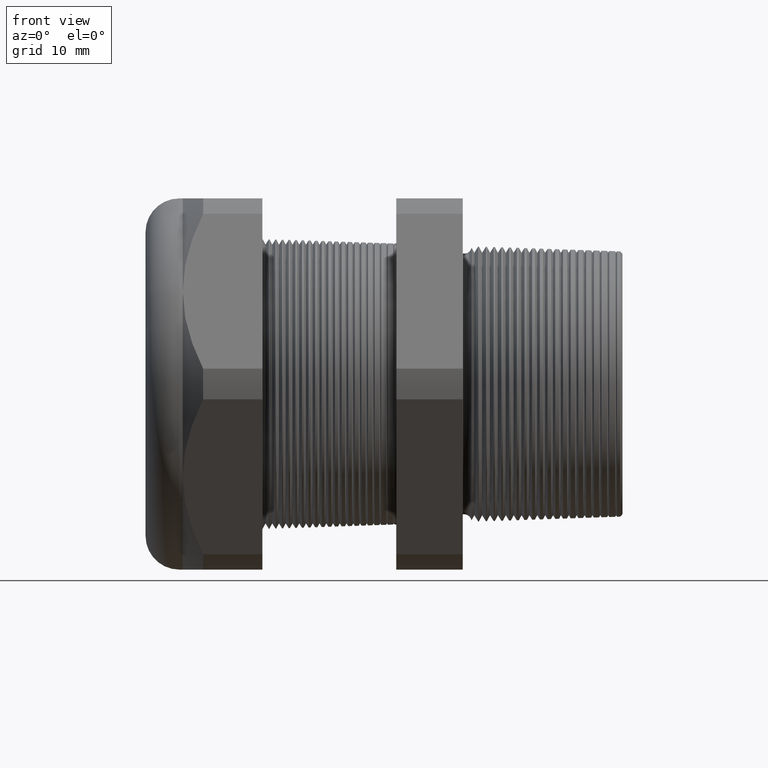
[diagram: clean part render]
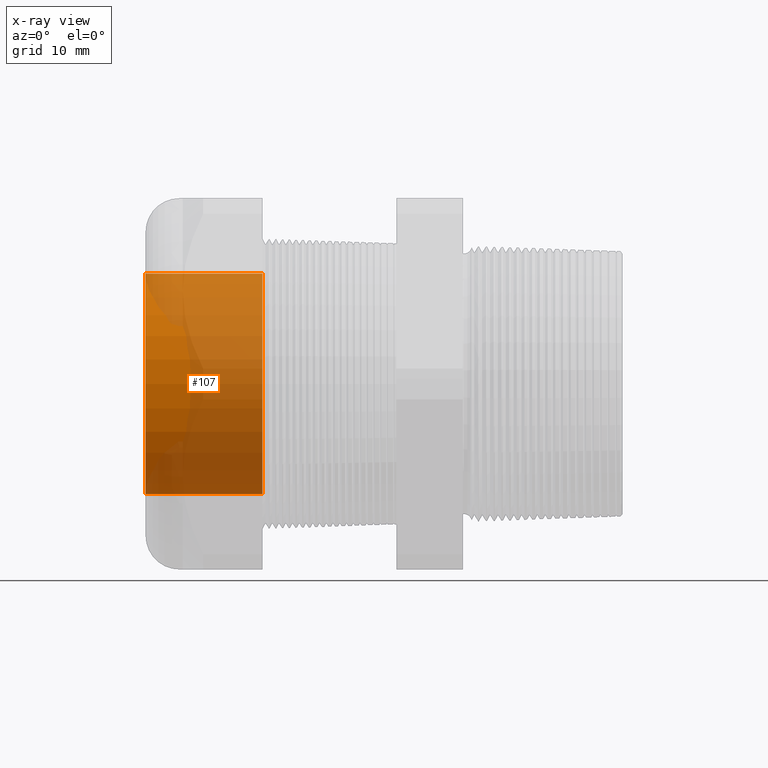
[diagram: x-ray — body ghosted, one internal face saturated and labeled with its STEP entity id]
A machine part, front view, then the same camera in x-ray: the body is ghosted and one INTERNAL B-rep face — a face not visible from any outside direction — is saturated and labeled: STEP entity #107.
In plain terms, the highlighted cylindrical surface (partial cylindrical patch) has radius 12.446 mm, axis along (1, 0, 0).
Its self-contained STEP definition (entity closure, byte-faithful):
#81 = VERTEX_POINT ( 'NONE', #2477 ) ;
#83 = VERTEX_POINT ( 'NONE', #2475 ) ;
#94 = ORIENTED_EDGE ( 'NONE', *, *, #629, .T. ) ;
#102 = EDGE_CURVE ( 'NONE', #83, #81, #2564, .T. ) ;
#103 = ORIENTED_EDGE ( 'NONE', *, *, #102, .F. ) ;
#104 = EDGE_LOOP ( 'NONE', ( #103, #94, #624, #627 ) ) ;
#106 = VERTEX_POINT ( 'NONE', #2544 ) ;
#107 = ADVANCED_FACE ( 'NONE', ( #2543 ), #2542, .F. ) ;
#607 = EDGE_CURVE ( 'NONE', #106, #617, #3536, .T. ) ;
#617 = VERTEX_POINT ( 'NONE', #3576 ) ;
#623 = EDGE_CURVE ( 'NONE', #81, #617, #3575, .T. ) ;
#624 = ORIENTED_EDGE ( 'NONE', *, *, #607, .T. ) ;
#627 = ORIENTED_EDGE ( 'NONE', *, *, #623, .F. ) ;
#629 = EDGE_CURVE ( 'NONE', #83, #106, #3618, .T. ) ;
#2475 = CARTESIAN_POINT ( 'NONE',  ( -1.720000000000000000, 6.000769315822029800E-017, 0.4899999999999999900 ) ) ;
#2477 = CARTESIAN_POINT ( 'NONE',  ( -1.720000000000000000, 0.0000000000000000000, -0.4899999999999999900 ) ) ;
#2537 = DIRECTION ( 'NONE',  ( 0.0000000000000000000, 0.0000000000000000000, -1.000000000000000000 ) ) ;
#2538 = DIRECTION ( 'NONE',  ( 1.000000000000000000, 0.0000000000000000000, 0.0000000000000000000 ) ) ;
#2539 = CARTESIAN_POINT ( 'NONE',  ( 0.0000000000000000000, 0.0000000000000000000, 0.0000000000000000000 ) ) ;
#2540 = AXIS2_PLACEMENT_3D ( 'NONE', #2539, #2538, #2537 ) ;
#2542 = CYLINDRICAL_SURFACE ( 'NONE', #2540, 0.4899999999999999900 ) ;
#2543 = FACE_OUTER_BOUND ( 'NONE', #104, .T. ) ;
#2544 = CARTESIAN_POINT ( 'NONE',  ( -1.200314960629921300, 6.000769315822029800E-017, 0.4899999999999999900 ) ) ;
#2549 = DIRECTION ( 'NONE',  ( 0.0000000000000000000, 0.0000000000000000000, -1.000000000000000000 ) ) ;
#2550 = DIRECTION ( 'NONE',  ( 1.000000000000000000, 0.0000000000000000000, 0.0000000000000000000 ) ) ;
#2561 = CARTESIAN_POINT ( 'NONE',  ( -1.720000000000000000, 0.0000000000000000000, 0.0000000000000000000 ) ) ;
#2562 = AXIS2_PLACEMENT_3D ( 'NONE', #2561, #2550, #2549 ) ;
#2564 = CIRCLE ( 'NONE', #2562, 0.4899999999999999900 ) ;
#3533 = DIRECTION ( 'NONE',  ( 1.000000000000000000, 0.0000000000000000000, 0.0000000000000000000 ) ) ;
#3534 = CARTESIAN_POINT ( 'NONE',  ( -1.200314960629921300, 0.0000000000000000000, 0.0000000000000000000 ) ) ;
#3535 = AXIS2_PLACEMENT_3D ( 'NONE', #3534, #3533, #3596 ) ;
#3536 = CIRCLE ( 'NONE', #3535, 0.4899999999999999900 ) ;
#3567 = DIRECTION ( 'NONE',  ( 1.000000000000000000, 0.0000000000000000000, 0.0000000000000000000 ) ) ;
#3568 = VECTOR ( 'NONE', #3567, 39.37007874015748100 ) ;
#3569 = CARTESIAN_POINT ( 'NONE',  ( 0.0000000000000000000, 0.0000000000000000000, -0.4899999999999999900 ) ) ;
#3575 = LINE ( 'NONE', #3569, #3568 ) ;
#3576 = CARTESIAN_POINT ( 'NONE',  ( -1.200314960629921300, 0.0000000000000000000, -0.4899999999999999900 ) ) ;
#3596 = DIRECTION ( 'NONE',  ( 0.0000000000000000000, 0.0000000000000000000, -1.000000000000000000 ) ) ;
#3615 = DIRECTION ( 'NONE',  ( 1.000000000000000000, 0.0000000000000000000, 0.0000000000000000000 ) ) ;
#3616 = VECTOR ( 'NONE', #3615, 39.37007874015748100 ) ;
#3617 = CARTESIAN_POINT ( 'NONE',  ( 0.0000000000000000000, 6.000769315822029800E-017, 0.4899999999999999900 ) ) ;
#3618 = LINE ( 'NONE', #3617, #3616 ) ;